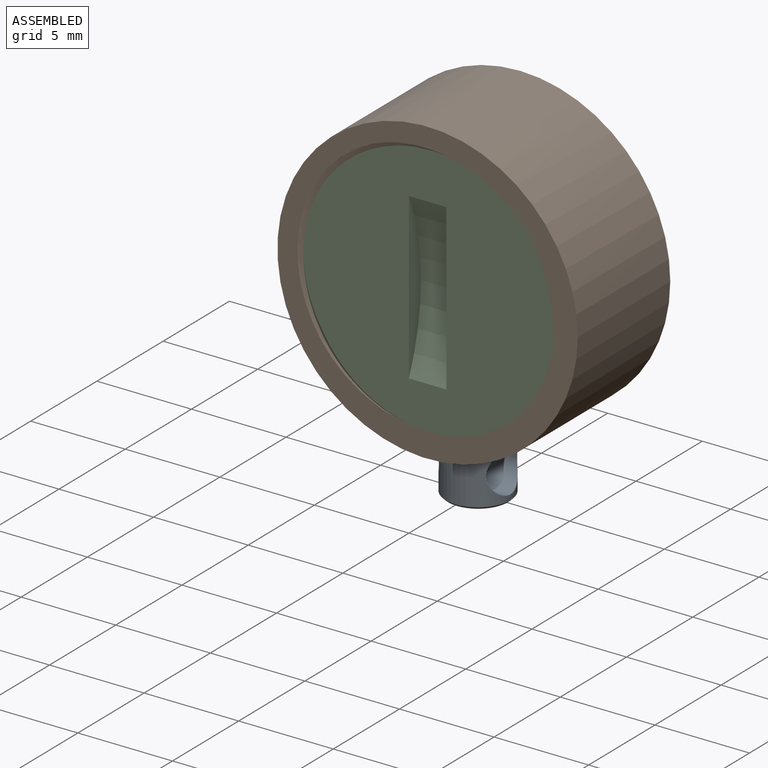
[diagram: assembled view]
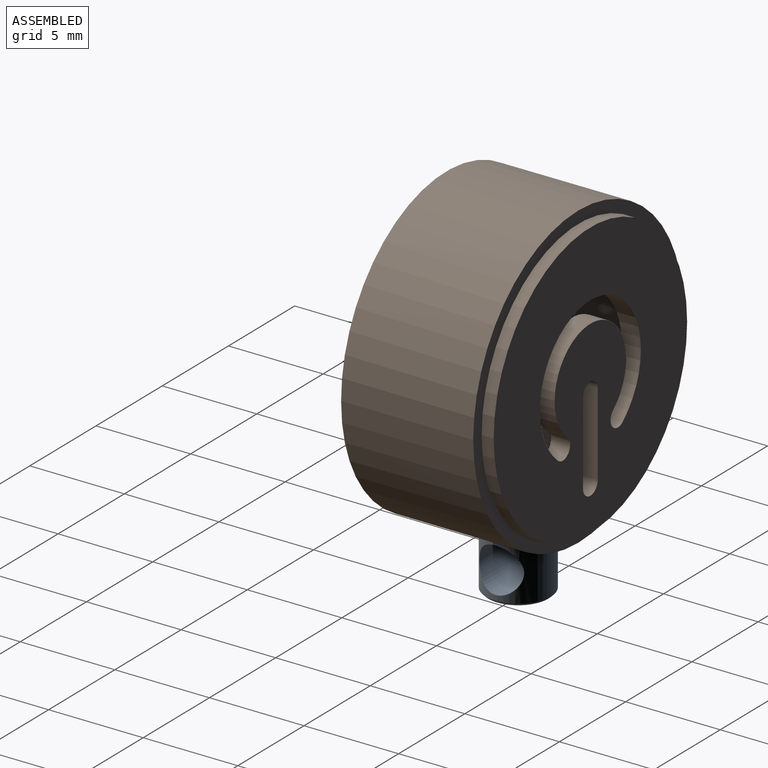
[diagram: assembled view, second angle]
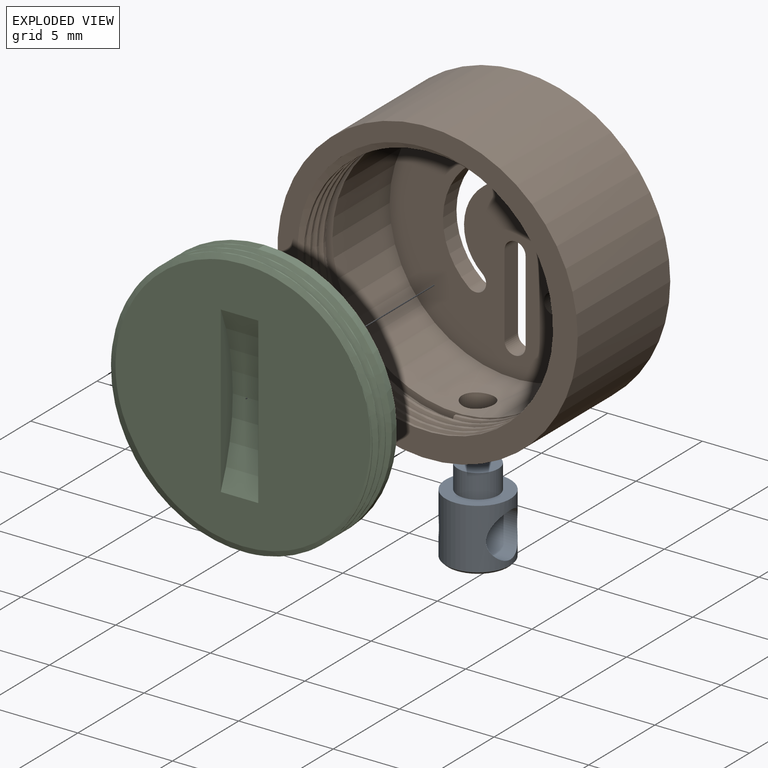
[diagram: exploded view]
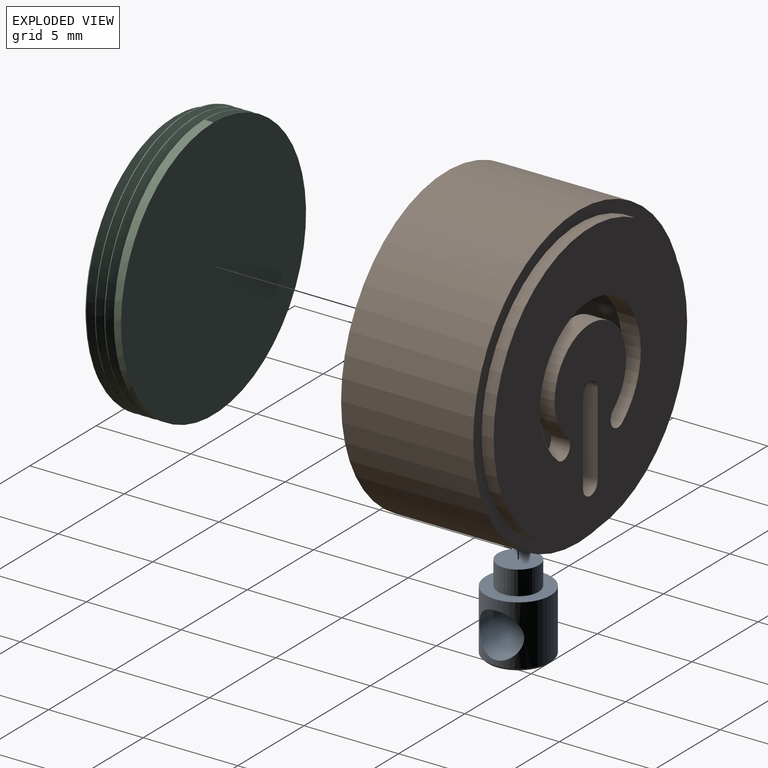
[diagram: exploded view, second angle]
ASSEMBLY  parts=3 mates=2
PART A: 7 faces, bbox 3.4x4.6x3.4 mm
  f0: plane 2.16x2.16mm, normal (0,-1,0), area 3.7mm2, adj f1
  f1: cylinder r=1.08mm len=2.16mm, axis (0,1,0), area 8.6mm2, adj f0,f2
  f2: plane 3.43x3.43mm, normal (0,-1,0), area 5.6mm2, adj f1,f3
  f3: cylinder r=1.71mm len=3.43mm, axis (0,1,0), area 24.8mm2, adj f2,f4,f5
  f4: cylinder r=1.18mm len=3.43mm, axis (1,0,0), area 25.4mm2, adj f3
  f5: cone r=1.65mm half-angle=45deg, axis (0,-1,0), area 1.9mm2, adj f3,f6
  f6: plane 3.18x3.18mm, normal (0,1,0), area 7.9mm2, adj f5
PART B: 27 faces, bbox 16.1x8x16.1 mm
  f0: plane 14.61x14.61mm, normal (0,1,0), area 143.1mm2, adj f1,f14,f15,f16,f17,f18,f19,f20
  f1: cylinder r=7.3mm len=14.61mm, axis (0,1,0), area 29.1mm2, adj f0,f2
  f2: plane 15.88x15.88mm, normal (0,1,0), area 30.4mm2, adj f1,f3
  f3: cylinder r=7.94mm len=15.88mm, axis (0,1,0), area 342mm2, adj f2,f4,f5,f24
  f4: cylinder r=1.78mm len=3.56mm, axis (0,0,1), area 0.6mm2, adj f3,f6
  f5: cylinder r=1.78mm len=3.56mm, axis (0,0,1), area 0.6mm2, adj f3,f6
  f6: plane 3.56x3.56mm, normal (0,0,-1), area 7.7mm2, adj f4,f5,f7
  f7: cylinder r=0.84mm len=1.68mm, axis (0,0,1), area 5.8mm2, adj f6,f8
  f8: cylinder r=6.63mm len=13.26mm, axis (0,-1,0), area 177.6mm2, adj f7,f10,f13
  f9: cylinder r=6.63mm len=13.26mm, axis (0,-1,0), area 26.1mm2, adj f12,f22,f23,f24,f25,f26
  f10: plane 13.97x13.97mm, normal (0,-1,0), area 15.2mm2, adj f8,f11
  f11: cylinder r=6.99mm len=13.97mm, axis (0,-1,0), area 19.2mm2, adj f10,f12,f22,f23,f24,f25,f26
  f12: plane 0.46x0.36mm, normal (-1,0,0), area 0.1mm2, adj f9,f11,f22,f26
  f13: plane 13.26x13.26mm, normal (0,-1,0), area 113.6mm2, adj f8,f14,f15,f16,f17,f18,f19,f20
  f14: cylinder r=2.7mm len=5.4mm, axis (0,1,0), area 13.4mm2, adj f0,f13,f15,f17
  f15: cylinder r=0.56mm len=1.02mm, axis (0,1,0), area 1.8mm2, adj f0,f13,f14,f16
  f16: cylinder r=3.81mm len=7.62mm, axis (0,1,0), area 18.9mm2, adj f0,f13,f15,f17
  f17: cylinder r=0.56mm len=1.02mm, axis (0,-1,0), area 1.8mm2, adj f0,f13,f14,f16
  f18: plane 4.35x1.02mm, normal (-1,0,0), area 4.4mm2, adj f0,f13,f19,f21
  f19: cylinder r=0.56mm len=1.11mm, axis (0,1,0), area 1.8mm2, adj f0,f13,f18,f20
  f20: plane 4.35x1.02mm, normal (1,0,0), area 4.4mm2, adj f0,f13,f19,f21
  f21: cylinder r=0.56mm len=1.11mm, axis (0,-1,0), area 1.8mm2, adj f0,f13,f18,f20
  f22: bspline ~14.29x14.28mm, area 52.5mm2, adj f9,f11,f12,f23
  f23: bspline ~14.96x14.3mm, area 10.5mm2, adj f9,f11,f22,f24
  f24: plane 16.1x16.1mm, normal (0,-1,0), area 53.9mm2, adj f3,f9,f11,f23,f25
  f25: bspline ~14.66x14.63mm, area 20.6mm2, adj f9,f11,f24,f26
  f26: bspline ~14.29x14.28mm, area 52.5mm2, adj f9,f11,f12,f25
PART C: 11 faces, bbox 14.6x2.2x14.5 mm
  f0: plane 13.97x13.97mm, normal (0,-1,0), area 153.3mm2, adj f1
  f1: cylinder r=6.99mm len=13.97mm, axis (0,1,0), area 16.3mm2, adj f0,f2,f3,f4,f5,f6
  f2: plane 0.53x0.46mm, normal (-1,0,0), area 0.1mm2, adj f1,f3,f5
  f3: bspline ~14.26x14.25mm, area 75.4mm2, adj f1,f2,f4,f5,f7
  f4: plane 13.6x13.57mm, normal (0,1,0), area 125.6mm2, adj f1,f3,f6,f7,f8,f9,f10
  f5: bspline ~14.26x14.25mm, area 77.8mm2, adj f1,f2,f3,f6
  f6: bspline ~14.54x10.97mm, area 9.7mm2, adj f1,f4,f5,f7
  f7: bspline ~6.77x1.57mm, area 0.7mm2, adj f3,f4,f6
  f8: cylinder r=10.92mm len=8.72mm, axis (1,0,0), area 17.8mm2, adj f4,f9,f10
  f9: plane 8.72x0.91mm, normal (-1,0,0), area 5.3mm2, adj f4,f8
  f10: plane 8.72x0.91mm, normal (1,0,0), area 5.3mm2, adj f4,f8
PLACE A rot(axis=(-1,0,0),90deg) t=(-0.59,-6.08,1.8)mm
PLACE B t=(-0.59,-12.69,8.26)mm
PLACE C rot(axis=(1,0,0),180deg) t=(-0.59,-8,8.26)mm
MATE fastened C.f1 <-> B.f1  axis (0,-1,0) through (-0.59,-9.89,8.26)mm
MATE fastened A.f1 <-> B.f4  axis (0,0,-1) through (-0.59,-6.08,0.53)mm
